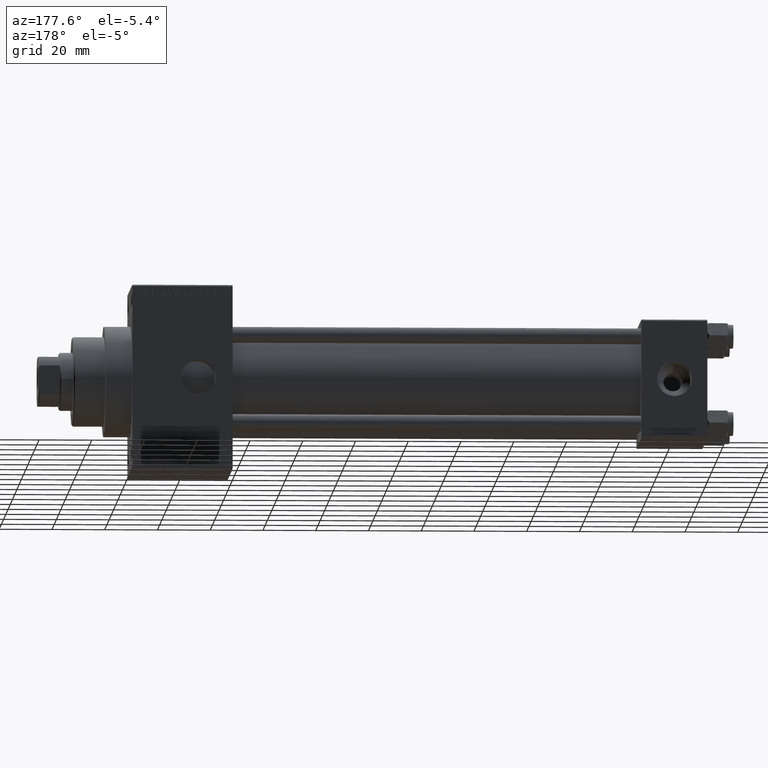
[diagram: clean part render]
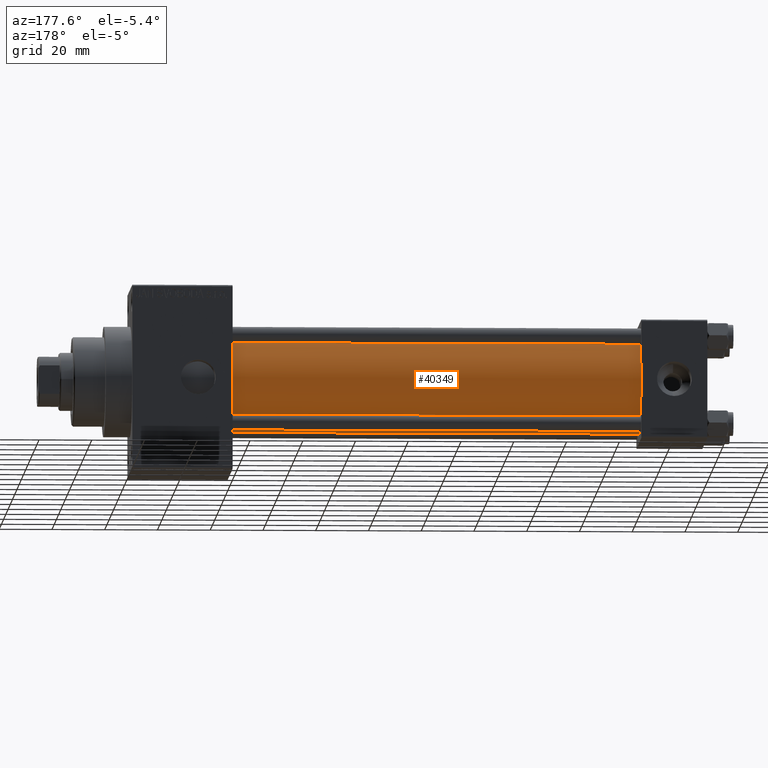
[diagram: same view with one face highlighted and labeled with its STEP entity id]
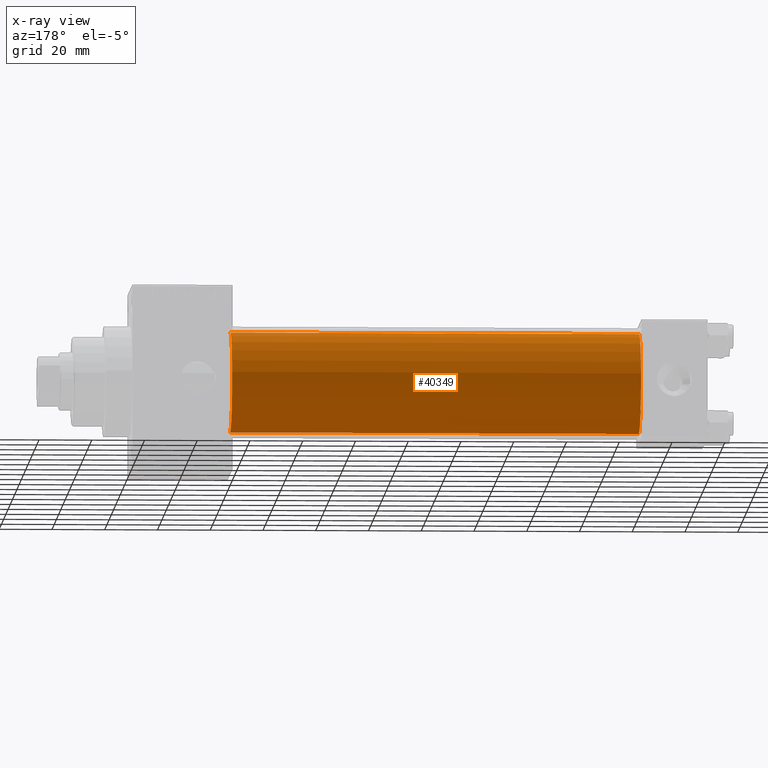
[diagram: x-ray of the same camera — body ghosted, the highlighted face saturated]
A machine part, auxiliary view. The second image highlights one B-rep face of the part: STEP entity #40349.
The next image is the same camera in x-ray: the body ghosted, the highlighted face saturated — about 0% of this face is hidden behind the body in this view.
In plain terms, the highlighted cylindrical surface (partial cylindrical patch) has radius 19 mm, axis along (-1, -0, -0).
Its self-contained STEP definition (entity closure, byte-faithful):
#5217 = CIRCLE ( 'NONE', #18662, 19.00000000000000000 ) ;
#6696 = VERTEX_POINT ( 'NONE', #8561 ) ;
#6992 = VECTOR ( 'NONE', #10606, 1000.000000000000000 ) ;
#8561 = CARTESIAN_POINT ( 'NONE',  ( 180.0000000000000000, -2.752562955852396712E-16, -19.00000000000000000 ) ) ;
#10606 = DIRECTION ( 'NONE',  ( -1.000000000000000000, -0.000000000000000000, -0.000000000000000000 ) ) ;
#12641 = VERTEX_POINT ( 'NONE', #47401 ) ;
#13882 = CARTESIAN_POINT ( 'NONE',  ( 24.99999999999999289, -2.602085213965210642E-15, 0.000000000000000000 ) ) ;
#15820 = ORIENTED_EDGE ( 'NONE', *, *, #28703, .F. ) ;
#17792 = VERTEX_POINT ( 'NONE', #47063 ) ;
#18605 = EDGE_LOOP ( 'NONE', ( #15820, #29389, #22962, #29856 ) ) ;
#18623 = CIRCLE ( 'NONE', #43216, 19.00000000000000000 ) ;
#18662 = AXIS2_PLACEMENT_3D ( 'NONE', #13882, #24786, #40404 ) ;
#18863 = DIRECTION ( 'NONE',  ( -1.000000000000000000, -0.000000000000000000, -0.000000000000000000 ) ) ;
#18916 = AXIS2_PLACEMENT_3D ( 'NONE', #22069, #18863, #36937 ) ;
#19867 = DIRECTION ( 'NONE',  ( 0.000000000000000000, 0.000000000000000000, -1.000000000000000000 ) ) ;
#20868 = VERTEX_POINT ( 'NONE', #41461 ) ;
#22069 = CARTESIAN_POINT ( 'NONE',  ( 180.0000000000000000, -2.602085213965210642E-15, 0.000000000000000000 ) ) ;
#22962 = ORIENTED_EDGE ( 'NONE', *, *, #29695, .T. ) ;
#23581 = CARTESIAN_POINT ( 'NONE',  ( 180.0000000000000000, -2.602085213965210642E-15, 0.000000000000000000 ) ) ;
#24786 = DIRECTION ( 'NONE',  ( 1.000000000000000000, -0.000000000000000000, 0.000000000000000000 ) ) ;
#26224 = CARTESIAN_POINT ( 'NONE',  ( 180.0000000000000000, -2.602085213965210642E-15, 19.00000000000000000 ) ) ;
#27626 = DIRECTION ( 'NONE',  ( -1.000000000000000000, -0.000000000000000000, -0.000000000000000000 ) ) ;
#28703 = EDGE_CURVE ( 'NONE', #6696, #20868, #18623, .T. ) ;
#29389 = ORIENTED_EDGE ( 'NONE', *, *, #44551, .T. ) ;
#29695 = EDGE_CURVE ( 'NONE', #17792, #12641, #5217, .T. ) ;
#29751 = FACE_OUTER_BOUND ( 'NONE', #18605, .T. ) ;
#29856 = ORIENTED_EDGE ( 'NONE', *, *, #40660, .F. ) ;
#29942 = LINE ( 'NONE', #26224, #6992 ) ;
#34834 = LINE ( 'NONE', #43271, #42821 ) ;
#36937 = DIRECTION ( 'NONE',  ( 0.000000000000000000, 0.000000000000000000, 1.000000000000000000 ) ) ;
#40349 = ADVANCED_FACE ( 'NONE', ( #29751 ), #44418, .T. ) ;
#40404 = DIRECTION ( 'NONE',  ( 0.000000000000000000, 0.000000000000000000, 1.000000000000000000 ) ) ;
#40660 = EDGE_CURVE ( 'NONE', #20868, #12641, #29942, .T. ) ;
#41461 = CARTESIAN_POINT ( 'NONE',  ( 180.0000000000000000, -2.602085213965210642E-15, 19.00000000000000000 ) ) ;
#42821 = VECTOR ( 'NONE', #27626, 1000.000000000000000 ) ;
#43216 = AXIS2_PLACEMENT_3D ( 'NONE', #23581, #46655, #19867 ) ;
#43271 = CARTESIAN_POINT ( 'NONE',  ( 180.0000000000000000, -2.752562955852396712E-16, -19.00000000000000000 ) ) ;
#44418 = CYLINDRICAL_SURFACE ( 'NONE', #18916, 19.00000000000000000 ) ;
#44551 = EDGE_CURVE ( 'NONE', #6696, #17792, #34834, .T. ) ;
#46655 = DIRECTION ( 'NONE',  ( 1.000000000000000000, 0.000000000000000000, 0.000000000000000000 ) ) ;
#47063 = CARTESIAN_POINT ( 'NONE',  ( 24.99999999999999289, -2.752562955852396712E-16, -19.00000000000000000 ) ) ;
#47401 = CARTESIAN_POINT ( 'NONE',  ( 24.99999999999999289, -2.602085213965210642E-15, 19.00000000000000000 ) ) ;